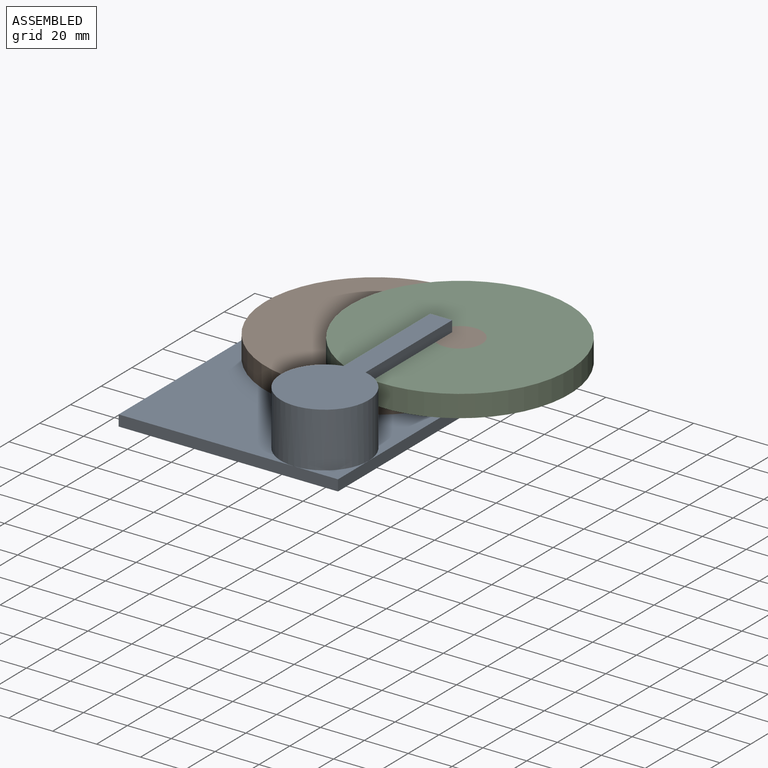
[diagram: assembled view]
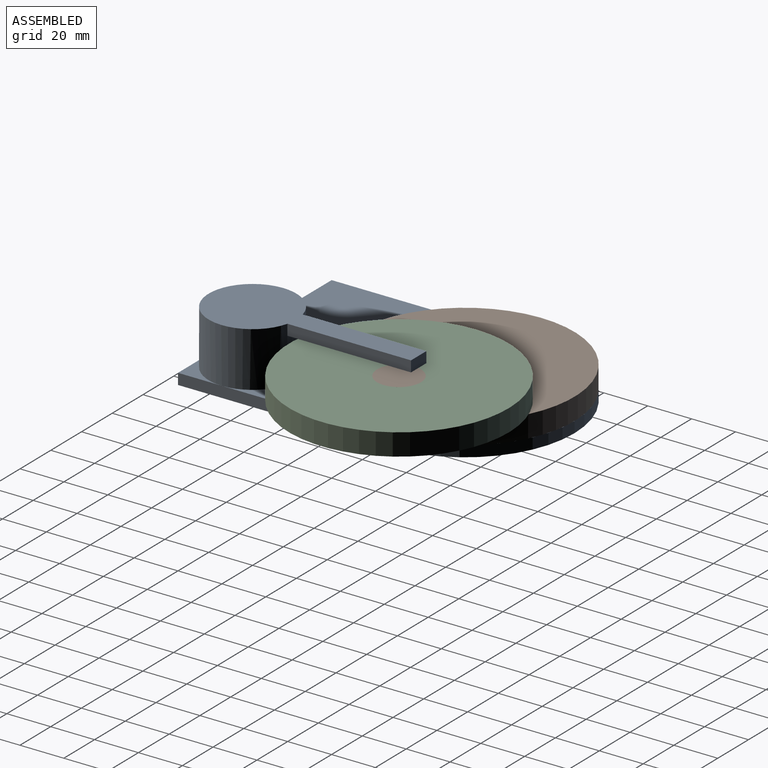
[diagram: assembled view, second angle]
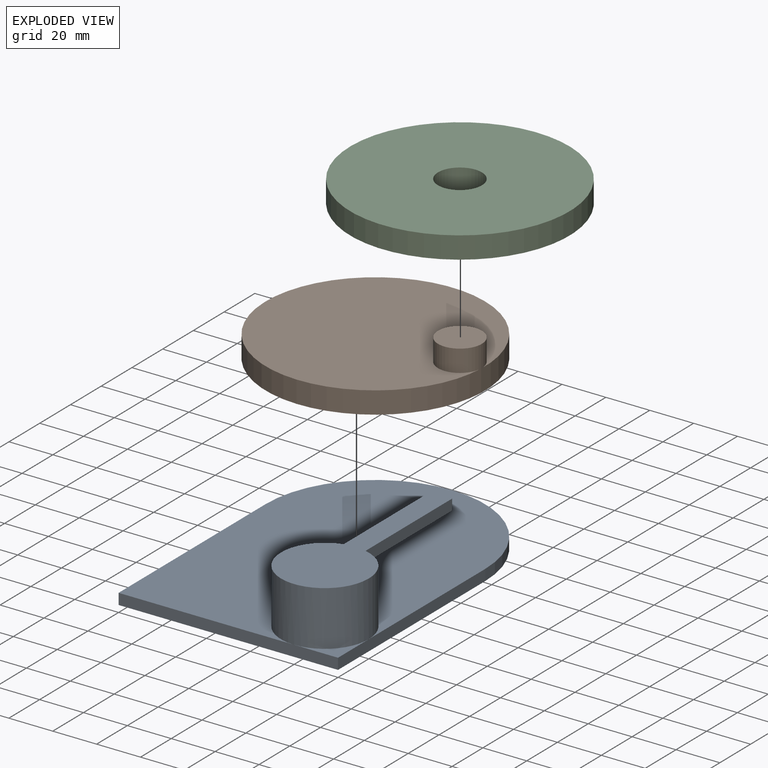
[diagram: exploded view]
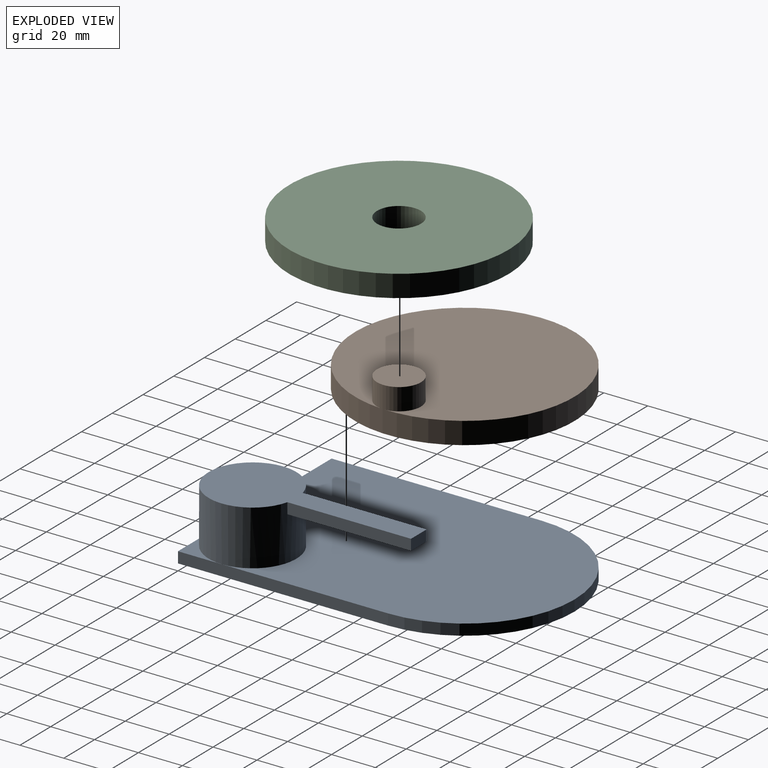
[diagram: exploded view, second angle]
ASSEMBLY  parts=3 mates=4
PART A: 13 faces, bbox 100x145.7x30 mm
  f0: plane 145.71x100mm, normal (0,0,1), area 12155.6mm2, adj f1,f2,f3,f4,f7
  f1: plane 100x5mm, normal (0,-1,0), area 500mm2, adj f0,f2,f4,f5,f6
  f2: plane 95.71x5mm, normal (1,0,0), area 478.6mm2, adj f0,f1,f3,f5,f6
  f3: cylinder r=50mm len=100mm, axis (0,0,-1), area 785.4mm2, adj f0,f2,f4,f6
  f4: plane 95.71x5mm, normal (-1,0,0), area 478.6mm2, adj f0,f1,f3,f6
  f5: plane 20x20mm, normal (0,0,1), area 85.8mm2, adj f1,f2,f7
  f6: plane 145.71x100mm, normal (0,0,-1), area 13498.1mm2, adj f1,f2,f3,f4
  f7: cylinder r=20mm len=40mm, axis (0,0,-1), area 3091.6mm2, adj f0,f5,f8,f9,f10,f12
  f8: plane 95.71x40mm, normal (0,0,1), area 1815.8mm2, adj f7,f9,f10,f11
  f9: plane 56.35x4.95mm, normal (-1,0,0), area 278.9mm2, adj f7,f8,f11,f12
  f10: plane 56.35x4.95mm, normal (1,0,0), area 278.9mm2, adj f7,f8,f11,f12
  f11: plane 10x4.95mm, normal (0,1,0), area 49.5mm2, adj f8,f9,f10,f12
  f12: plane 56.35x10mm, normal (0,0,-1), area 559.2mm2, adj f7,f9,f10,f11
PART B: 5 faces, bbox 100x100x20 mm
  f0: cylinder r=50mm len=100mm, axis (0,0,-1), area 3141.6mm2, adj f1,f2
  f1: plane 100x100mm, normal (0,0,1), area 7539.8mm2, adj f0,f3
  f2: plane 100x100mm, normal (0,0,-1), area 7854mm2, adj f0
  f3: cylinder r=10mm len=20mm, axis (0,0,-1), area 628.3mm2, adj f1,f4
  f4: plane 20x20mm, normal (0,0,1), area 314.2mm2, adj f3
PART C: 4 faces, bbox 100x100x10 mm
  f0: cylinder r=10mm len=20mm, axis (0,0,-1), area 628.3mm2, adj f2,f3
  f1: cylinder r=50mm len=100mm, axis (0,0,-1), area 3141.6mm2, adj f2,f3
  f2: plane 100x100mm, normal (0,0,1), area 7539.8mm2, adj f0,f1
  f3: plane 100x100mm, normal (0,0,-1), area 7539.8mm2, adj f0,f1
PLACE A t=(-50,95.71,0)mm
PLACE B rot(axis=(0,0,-1),2.9deg) t=(-50,95.71,0)mm
PLACE C rot(axis=(0,0,1),91.1deg) t=(-9.27,53.71,0)mm
MATE cylindrical B.f0 <-> A.f3  axis (0,0,-1) through (-50,95.71,10)mm
MATE planar C.f1 <-> B.f3  axis (0,0,1) through (-10.05,93.71,25)mm
MATE planar B.f0 <-> A.f0  axis (0,0,-1) through (-50,95.71,5)mm
MATE cylindrical C.f1 <-> B.f3  axis (0,0,-1) through (-10.05,93.71,20)mm
